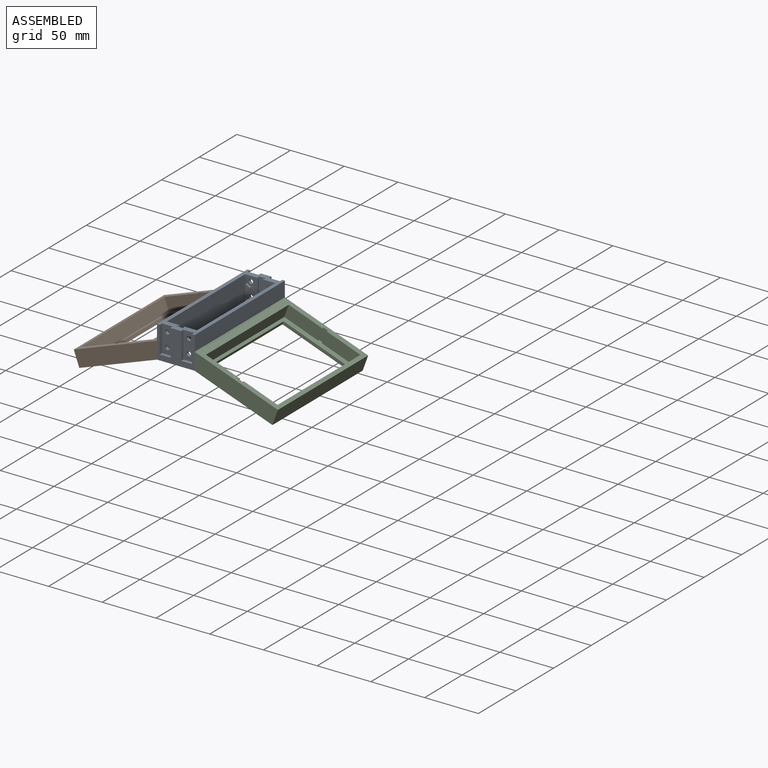
[diagram: assembled view]
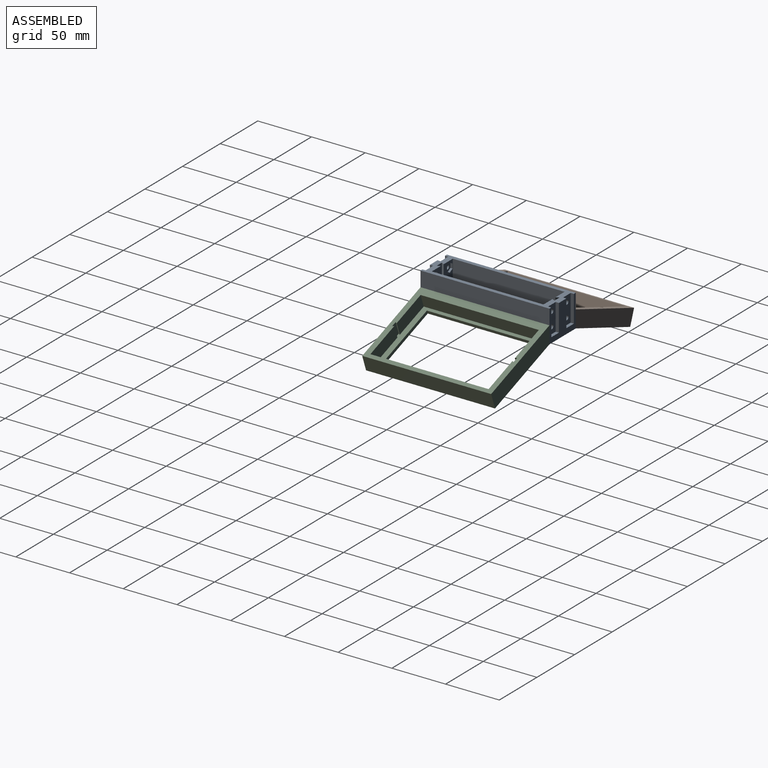
[diagram: assembled view, second angle]
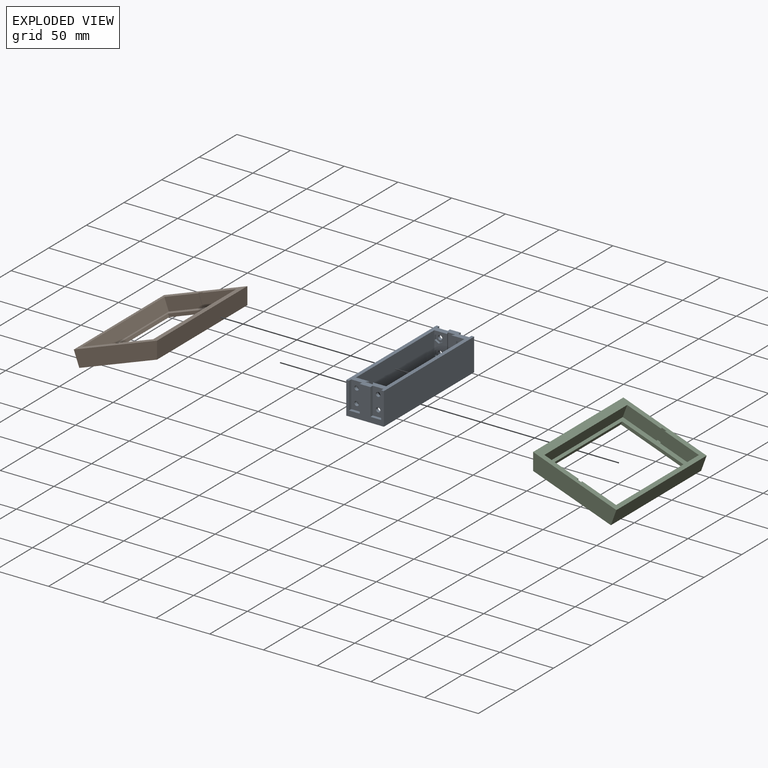
[diagram: exploded view]
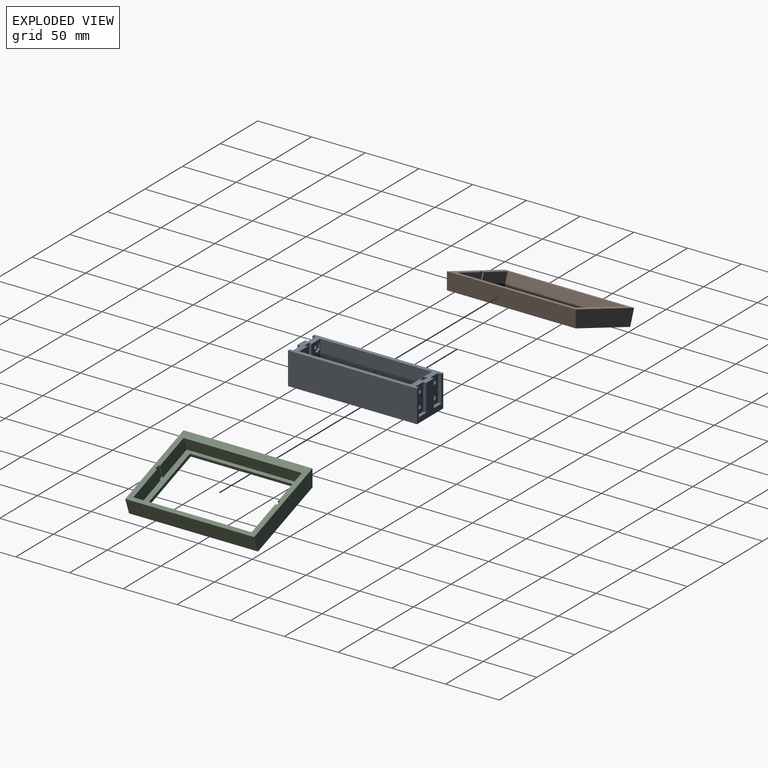
[diagram: exploded view, second angle]
ASSEMBLY  parts=3 mates=2
PART A: 103 faces, bbox 35x120x30 mm
  f0: plane 104x28mm, normal (0,0,1), area 412mm2, adj f1,f2,f8,f9,f14,f59,f101,f102
  f1: plane 28x28mm, normal (0,1,0), area 507.2mm2, adj f0,f7,f70,f71,f72,f73,f74,f75
  f2: plane 28x28mm, normal (0,-1,0), area 507.2mm2, adj f0,f7,f24,f25,f26,f27,f28,f29
  f3: cylinder r=2.05mm len=4.1mm, axis (0,1,0), area 38.6mm2, adj f20,f50
  f4: cylinder r=2.05mm len=4.1mm, axis (0,1,0), area 38.6mm2, adj f20,f43
  f5: cylinder r=2.05mm len=4.1mm, axis (0,1,0), area 38.6mm2, adj f16,f30
  f6: cylinder r=2.05mm len=4.1mm, axis (0,1,0), area 38.6mm2, adj f16,f23
  f7: plane 120x35mm, normal (0,0,1), area 1138.2mm2, adj f1,f2,f10,f12,f13,f15,f16,f17
  f8: plane 100x2mm, normal (-1,0,0), area 200mm2, adj f0,f9,f11,f59
  f9: plane 25x2mm, normal (0,-1,0), area 50mm2, adj f0,f8,f11,f14
  f10: plane 120x30mm, normal (-1,0,0), area 3600mm2, adj f7,f11,f13,f60
  f11: plane 120x35mm, normal (0,0,-1), area 1700mm2, adj f8,f9,f10,f12,f13,f14,f59,f60
  f12: plane 120x30mm, normal (1,0,0), area 3600mm2, adj f7,f11,f13,f60
  f13: plane 35x30mm, normal (0,1,0), area 550mm2, adj f7,f10,f11,f12,f15,f17,f18,f19
  f14: plane 100x2mm, normal (1,0,0), area 200mm2, adj f0,f9,f11,f59
  f15: plane 25x3mm, normal (1,0,0), area 75mm2, adj f7,f13,f16,f18
  f16: plane 25x10mm, normal (0,1,0), area 223.6mm2, adj f5,f6,f7,f15,f17,f18
  f17: plane 25x3mm, normal (-1,0,0), area 75mm2, adj f7,f13,f16,f18
  f18: plane 10x3mm, normal (0,0,1), area 30mm2, adj f13,f15,f16,f17
  f19: plane 25x3mm, normal (1,0,0), area 75mm2, adj f7,f13,f20,f22
  f20: plane 25x10mm, normal (0,1,0), area 223.6mm2, adj f3,f4,f7,f19,f21,f22
  f21: plane 25x3mm, normal (-1,0,0), area 75mm2, adj f7,f13,f20,f22
  f22: plane 10x3mm, normal (0,0,1), area 30mm2, adj f13,f19,f20,f21
  f23: plane 8.43x7.3mm, normal (0,-1,0), area 32.9mm2, adj f6,f24,f25,f26,f27,f28,f29
  f24: plane 3.65x2.11mm, normal (0.5,0,-0.87), area 8.4mm2, adj f2,f23,f25,f29
  f25: plane 4.21x2mm, normal (1,0,0), area 8.4mm2, adj f2,f23,f24,f26
  f26: plane 3.65x2.11mm, normal (0.5,0,0.87), area 8.4mm2, adj f2,f23,f25,f27
  f27: plane 3.65x2.11mm, normal (-0.5,0,0.87), area 8.4mm2, adj f2,f23,f26,f28
  f28: plane 4.21x2mm, normal (-1,0,0), area 8.4mm2, adj f2,f23,f27,f29
  f29: plane 3.65x2.11mm, normal (-0.5,0,-0.87), area 8.4mm2, adj f2,f23,f24,f28
  f30: plane 8.43x7.3mm, normal (0,-1,0), area 32.9mm2, adj f5,f31,f32,f33,f34,f35,f36
  f31: plane 3.65x2.11mm, normal (0.5,0,-0.87), area 8.4mm2, adj f2,f30,f32,f36
  f32: plane 4.21x2mm, normal (1,0,0), area 8.4mm2, adj f2,f30,f31,f33
  f33: plane 3.65x2.11mm, normal (0.5,0,0.87), area 8.4mm2, adj f2,f30,f32,f34
  f34: plane 3.65x2.11mm, normal (-0.5,0,0.87), area 8.4mm2, adj f2,f30,f33,f35
  f35: plane 4.21x2mm, normal (-1,0,0), area 8.4mm2, adj f2,f30,f34,f36
  f36: plane 3.65x2.11mm, normal (-0.5,0,-0.87), area 8.4mm2, adj f2,f30,f31,f35
  f37: plane 3.65x2.11mm, normal (0.5,0,-0.87), area 8.4mm2, adj f2,f38,f42,f43
  f38: plane 4.21x2mm, normal (1,0,0), area 8.4mm2, adj f2,f37,f39,f43
  f39: plane 3.65x2.11mm, normal (0.5,0,0.87), area 8.4mm2, adj f2,f38,f40,f43
  f40: plane 3.65x2.11mm, normal (-0.5,0,0.87), area 8.4mm2, adj f2,f39,f41,f43
  f41: plane 4.21x2mm, normal (-1,0,0), area 8.4mm2, adj f2,f40,f42,f43
  f42: plane 3.65x2.11mm, normal (-0.5,0,-0.87), area 8.4mm2, adj f2,f37,f41,f43
  f43: plane 8.43x7.3mm, normal (0,-1,0), area 32.9mm2, adj f4,f37,f38,f39,f40,f41,f42
  f44: plane 3.65x2.11mm, normal (-0.5,0,0.87), area 8.4mm2, adj f2,f45,f49,f50
  f45: plane 4.21x2mm, normal (-1,0,0), area 8.4mm2, adj f2,f44,f46,f50
  f46: plane 3.65x2.11mm, normal (-0.5,0,-0.87), area 8.4mm2, adj f2,f45,f47,f50
  f47: plane 3.65x2.11mm, normal (0.5,0,-0.87), area 8.4mm2, adj f2,f46,f48,f50
  f48: plane 4.21x2mm, normal (1,0,0), area 8.4mm2, adj f2,f47,f49,f50
  f49: plane 3.65x2.11mm, normal (0.5,0,0.87), area 8.4mm2, adj f2,f44,f48,f50
  f50: plane 8.43x7.3mm, normal (0,-1,0), area 32.9mm2, adj f3,f44,f45,f46,f47,f48,f49
  f51: plane 25x2.81mm, normal (-0.87,0.5,0), area 81mm2, adj f2,f7,f52,f54
  f52: plane 25x6.93mm, normal (0,-1,0), area 173.2mm2, adj f7,f51,f53,f54
  f53: plane 25x2.81mm, normal (0.87,0.5,0), area 81mm2, adj f2,f7,f52,f54
  f54: plane 6.93x2.81mm, normal (0,0,1), area 14.9mm2, adj f2,f51,f52,f53
  f55: cylinder r=2.05mm len=4.1mm, axis (0,-1,0), area 38.6mm2, adj f66,f96
  f56: cylinder r=2.05mm len=4.1mm, axis (0,-1,0), area 38.6mm2, adj f66,f89
  f57: cylinder r=2.05mm len=4.1mm, axis (0,-1,0), area 38.6mm2, adj f62,f76
  f58: cylinder r=2.05mm len=4.1mm, axis (0,-1,0), area 38.6mm2, adj f62,f69
  f59: plane 25x2mm, normal (0,1,0), area 50mm2, adj f0,f8,f11,f14
  f60: plane 35x30mm, normal (0,-1,0), area 550mm2, adj f7,f10,f11,f12,f61,f63,f64,f65
  f61: plane 25x3mm, normal (1,0,0), area 75mm2, adj f7,f60,f62,f64
  f62: plane 25x10mm, normal (0,-1,0), area 223.6mm2, adj f7,f57,f58,f61,f63,f64
  f63: plane 25x3mm, normal (-1,0,0), area 75mm2, adj f7,f60,f62,f64
  f64: plane 10x3mm, normal (0,0,1), area 30mm2, adj f60,f61,f62,f63
  f65: plane 25x3mm, normal (1,0,0), area 75mm2, adj f7,f60,f66,f68
  f66: plane 25x10mm, normal (0,-1,0), area 223.6mm2, adj f7,f55,f56,f65,f67,f68
  f67: plane 25x3mm, normal (-1,0,0), area 75mm2, adj f7,f60,f66,f68
  f68: plane 10x3mm, normal (0,0,1), area 30mm2, adj f60,f65,f66,f67
  f69: plane 8.43x7.3mm, normal (0,1,0), area 32.9mm2, adj f58,f70,f71,f72,f73,f74,f75
  f70: plane 3.65x2.11mm, normal (0.5,0,-0.87), area 8.4mm2, adj f1,f69,f71,f75
  f71: plane 4.21x2mm, normal (1,0,0), area 8.4mm2, adj f1,f69,f70,f72
  f72: plane 3.65x2.11mm, normal (0.5,0,0.87), area 8.4mm2, adj f1,f69,f71,f73
  f73: plane 3.65x2.11mm, normal (-0.5,0,0.87), area 8.4mm2, adj f1,f69,f72,f74
  f74: plane 4.21x2mm, normal (-1,0,0), area 8.4mm2, adj f1,f69,f73,f75
  f75: plane 3.65x2.11mm, normal (-0.5,0,-0.87), area 8.4mm2, adj f1,f69,f70,f74
  f76: plane 8.43x7.3mm, normal (0,1,0), area 32.9mm2, adj f57,f77,f78,f79,f80,f81,f82
  f77: plane 3.65x2.11mm, normal (0.5,0,-0.87), area 8.4mm2, adj f1,f76,f78,f82
  f78: plane 4.21x2mm, normal (1,0,0), area 8.4mm2, adj f1,f76,f77,f79
  f79: plane 3.65x2.11mm, normal (0.5,0,0.87), area 8.4mm2, adj f1,f76,f78,f80
  f80: plane 3.65x2.11mm, normal (-0.5,0,0.87), area 8.4mm2, adj f1,f76,f79,f81
  f81: plane 4.21x2mm, normal (-1,0,0), area 8.4mm2, adj f1,f76,f80,f82
  f82: plane 3.65x2.11mm, normal (-0.5,0,-0.87), area 8.4mm2, adj f1,f76,f77,f81
  f83: plane 3.65x2.11mm, normal (0.5,0,-0.87), area 8.4mm2, adj f1,f84,f88,f89
  f84: plane 4.21x2mm, normal (1,0,0), area 8.4mm2, adj f1,f83,f85,f89
  f85: plane 3.65x2.11mm, normal (0.5,0,0.87), area 8.4mm2, adj f1,f84,f86,f89
  f86: plane 3.65x2.11mm, normal (-0.5,0,0.87), area 8.4mm2, adj f1,f85,f87,f89
  f87: plane 4.21x2mm, normal (-1,0,0), area 8.4mm2, adj f1,f86,f88,f89
  f88: plane 3.65x2.11mm, normal (-0.5,0,-0.87), area 8.4mm2, adj f1,f83,f87,f89
  f89: plane 8.43x7.3mm, normal (0,1,0), area 32.9mm2, adj f56,f83,f84,f85,f86,f87,f88
  f90: plane 3.65x2.11mm, normal (-0.5,0,0.87), area 8.4mm2, adj f1,f91,f95,f96
  f91: plane 4.21x2mm, normal (-1,0,0), area 8.4mm2, adj f1,f90,f92,f96
  f92: plane 3.65x2.11mm, normal (-0.5,0,-0.87), area 8.4mm2, adj f1,f91,f93,f96
  f93: plane 3.65x2.11mm, normal (0.5,0,-0.87), area 8.4mm2, adj f1,f92,f94,f96
  f94: plane 4.21x2mm, normal (1,0,0), area 8.4mm2, adj f1,f93,f95,f96
  f95: plane 3.65x2.11mm, normal (0.5,0,0.87), area 8.4mm2, adj f1,f90,f94,f96
  f96: plane 8.43x7.3mm, normal (0,1,0), area 32.9mm2, adj f55,f90,f91,f92,f93,f94,f95
  f97: plane 25x2.81mm, normal (-0.87,-0.5,0), area 81mm2, adj f1,f7,f98,f100
  f98: plane 25x6.93mm, normal (0,1,0), area 173.2mm2, adj f7,f97,f99,f100
  f99: plane 25x2.81mm, normal (0.87,-0.5,0), area 81mm2, adj f1,f7,f98,f100
  f100: plane 6.93x2.81mm, normal (0,0,1), area 14.9mm2, adj f1,f97,f98,f99
  f101: plane 104x28mm, normal (-1,0,0), area 2912mm2, adj f0,f1,f2,f7
  f102: plane 104x28mm, normal (1,0,0), area 2912mm2, adj f0,f1,f2,f7
PART B: 23 faces, bbox 82.5x120x15 mm
  f0: plane 120x82.46mm, normal (0,0,1), area 2073.1mm2, adj f2,f3,f5,f8,f9,f10,f12,f13
  f1: plane 120x77mm, normal (0,0,-1), area 2740mm2, adj f6,f7,f9,f10,f11,f12,f14,f22
  f2: plane 33.83x12mm, normal (0,-1,0), area 406mm2, adj f0,f4,f5,f19
  f3: plane 33.83x12mm, normal (0,1,0), area 406mm2, adj f0,f4,f13,f17
  f4: plane 112.89x71mm, normal (0,0,1), area 1322mm2, adj f2,f3,f5,f6,f7,f8,f11,f13
  f5: plane 110x12mm, normal (1,0,0), area 1320mm2, adj f0,f2,f4,f15
  f6: plane 100x3mm, normal (1,0,0), area 300mm2, adj f1,f4,f11,f14
  f7: plane 100x3mm, normal (-1,0,0), area 300mm2, adj f1,f4,f11,f14
  f8: plane 33.83x12mm, normal (0,-1,0), area 406mm2, adj f0,f4,f13,f20
  f9: plane 120x15mm, normal (0.94,0,-0.34), area 1915.5mm2, adj f0,f1,f10,f12
  f10: plane 82.46x15mm, normal (0,1,0), area 1195.9mm2, adj f0,f1,f9,f22
  f11: plane 65x3mm, normal (0,-1,0), area 195mm2, adj f1,f4,f6,f7
  f12: plane 82.46x15mm, normal (0,-1,0), area 1195.9mm2, adj f0,f1,f9,f22
  f13: plane 110x12mm, normal (-1,0,0), area 1320mm2, adj f0,f3,f4,f8
  f14: plane 65x3mm, normal (0,1,0), area 195mm2, adj f1,f4,f6,f7
  f15: plane 33.83x12mm, normal (0,1,0), area 406mm2, adj f0,f4,f5,f18
  f16: plane 12x5mm, normal (0,1,0), area 60mm2, adj f0,f4,f17,f18
  f17: plane 12x1.44mm, normal (-0.87,-0.5,0), area 20mm2, adj f0,f3,f4,f16
  f18: plane 12x1.44mm, normal (0.87,-0.5,0), area 20mm2, adj f0,f4,f15,f16
  f19: plane 12x1.44mm, normal (0.87,0.5,0), area 20mm2, adj f0,f2,f4,f21
  f20: plane 12x1.44mm, normal (-0.87,0.5,0), area 20mm2, adj f0,f4,f8,f21
  f21: plane 12x5mm, normal (0,-1,0), area 60mm2, adj f0,f4,f19,f20
  f22: plane 120x15mm, normal (-1,0,0), area 1800mm2, adj f0,f1,f10,f12
PART C: same geometry as B
PLACE A t=(37.4,0,0)mm
PLACE B rot(axis=(0,-1,0),20deg) t=(19.9,0,-15)mm
PLACE C rot(axis=(-0.17,0,-0.98),180deg) t=(54.9,-120,-15)mm
MATE fastened B.f9 <-> A.f10  axis (1,0,0) through (19.9,-60,-15)mm
MATE fastened C.f9 <-> A.f12  axis (-1,0,0) through (54.9,-60,-15)mm
